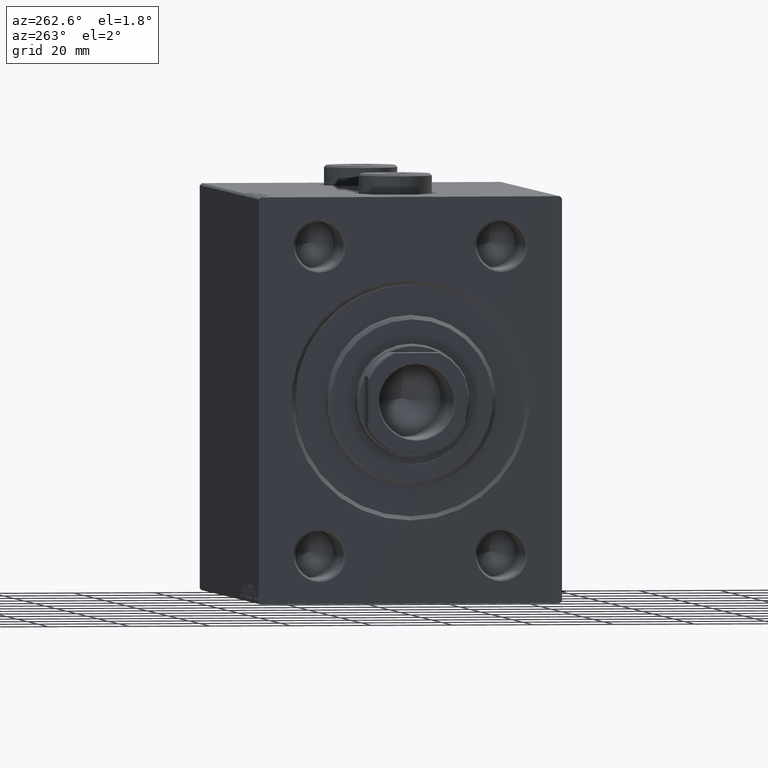
[diagram: clean part render]
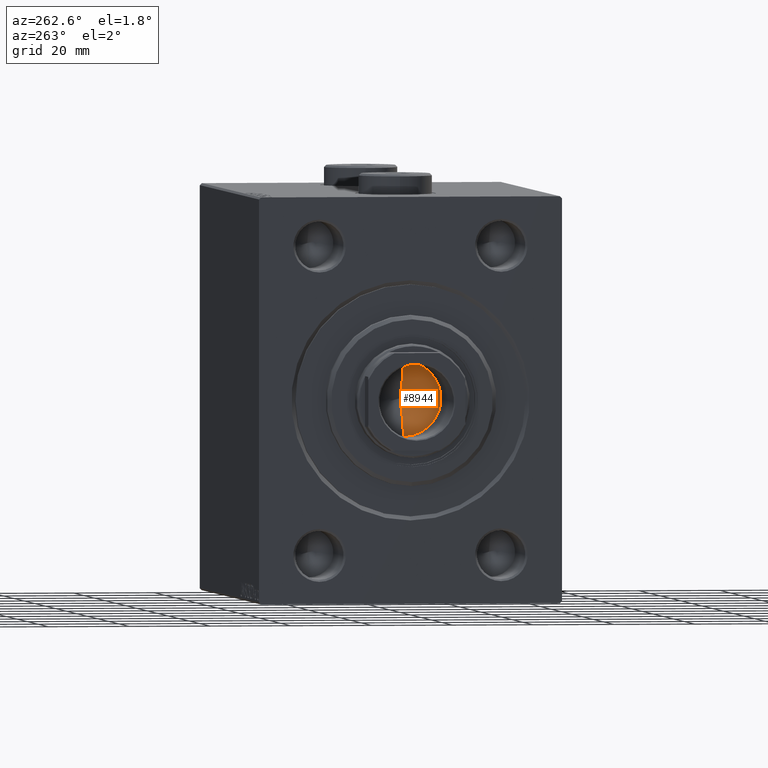
[diagram: same view with one face highlighted and labeled with its STEP entity id]
A machine part, auxiliary view. The second image highlights one B-rep face of the part: STEP entity #8944.
In plain terms, the highlighted conical surface has half-angle 59 deg.
Its self-contained STEP definition (entity closure, byte-faithful):
#58 = ORIENTED_EDGE ( 'NONE', *, *, #6708, .T. ) ;
#2422 = DIRECTION ( 'NONE',  ( -0.000000000000000000, -0.000000000000000000, 1.000000000000000000 ) ) ;
#2544 = LINE ( 'NONE', #2778, #4065 ) ;
#2778 = CARTESIAN_POINT ( 'NONE',  ( -9.249999999999994671, 1.132798289211300909E-15, 86.00000000000001421 ) ) ;
#4065 = VECTOR ( 'NONE', #12942, 1000.000000000000000 ) ;
#5479 = LINE ( 'NONE', #40619, #12147 ) ;
#6315 = CONICAL_SURFACE ( 'NONE', #43958, 9.249999999999994671, 1.029744258676652535 ) ;
#6708 = EDGE_CURVE ( 'NONE', #21410, #38110, #31395, .T. ) ;
#6859 = EDGE_CURVE ( 'NONE', #17981, #21410, #2544, .T. ) ;
#8944 = ADVANCED_FACE ( 'NONE', ( #9581 ), #6315, .F. ) ;
#9581 = FACE_OUTER_BOUND ( 'NONE', #18411, .T. ) ;
#12147 = VECTOR ( 'NONE', #37156, 1000.000000000000000 ) ;
#12942 = DIRECTION ( 'NONE',  ( -0.8571673007021113344, 1.049727191138617463E-16, 0.5150380749100558209 ) ) ;
#17981 = VERTEX_POINT ( 'NONE', #42869 ) ;
#18411 = EDGE_LOOP ( 'NONE', ( #39023, #32075, #58 ) ) ;
#21410 = VERTEX_POINT ( 'NONE', #21578 ) ;
#21578 = CARTESIAN_POINT ( 'NONE',  ( -9.249999999999994671, 1.132798289211300909E-15, 86.00000000000001421 ) ) ;
#27278 = DIRECTION ( 'NONE',  ( 1.000000000000000000, 0.000000000000000000, 0.000000000000000000 ) ) ;
#28429 = AXIS2_PLACEMENT_3D ( 'NONE', #37681, #30512, #27278 ) ;
#30512 = DIRECTION ( 'NONE',  ( -0.000000000000000000, -0.000000000000000000, 1.000000000000000000 ) ) ;
#30565 = EDGE_CURVE ( 'NONE', #17981, #38110, #5479, .T. ) ;
#30587 = CARTESIAN_POINT ( 'NONE',  ( 9.249999999999994671, 0.000000000000000000, 86.00000000000001421 ) ) ;
#31395 = CIRCLE ( 'NONE', #28429, 9.249999999999994671 ) ;
#32075 = ORIENTED_EDGE ( 'NONE', *, *, #6859, .T. ) ;
#34320 = DIRECTION ( 'NONE',  ( 1.000000000000000000, 0.000000000000000000, 0.000000000000000000 ) ) ;
#37156 = DIRECTION ( 'NONE',  ( 0.8571673007021113344, 0.000000000000000000, 0.5150380749100558209 ) ) ;
#37681 = CARTESIAN_POINT ( 'NONE',  ( 0.000000000000000000, 0.000000000000000000, 86.00000000000001421 ) ) ;
#38110 = VERTEX_POINT ( 'NONE', #30587 ) ;
#39023 = ORIENTED_EDGE ( 'NONE', *, *, #30565, .F. ) ;
#40619 = CARTESIAN_POINT ( 'NONE',  ( 9.249999999999994671, 0.000000000000000000, 86.00000000000001421 ) ) ;
#42869 = CARTESIAN_POINT ( 'NONE',  ( -6.793016015247754405E-15, 0.000000000000000000, 80.44203927399506426 ) ) ;
#43958 = AXIS2_PLACEMENT_3D ( 'NONE', #45636, #2422, #34320 ) ;
#45636 = CARTESIAN_POINT ( 'NONE',  ( 0.000000000000000000, 0.000000000000000000, 86.00000000000001421 ) ) ;